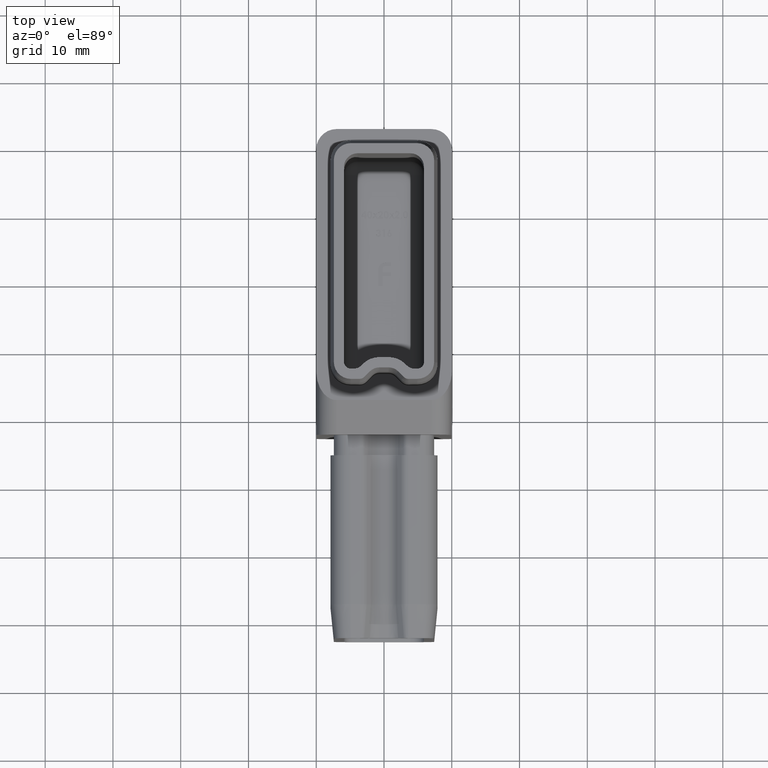
[diagram: clean part render]
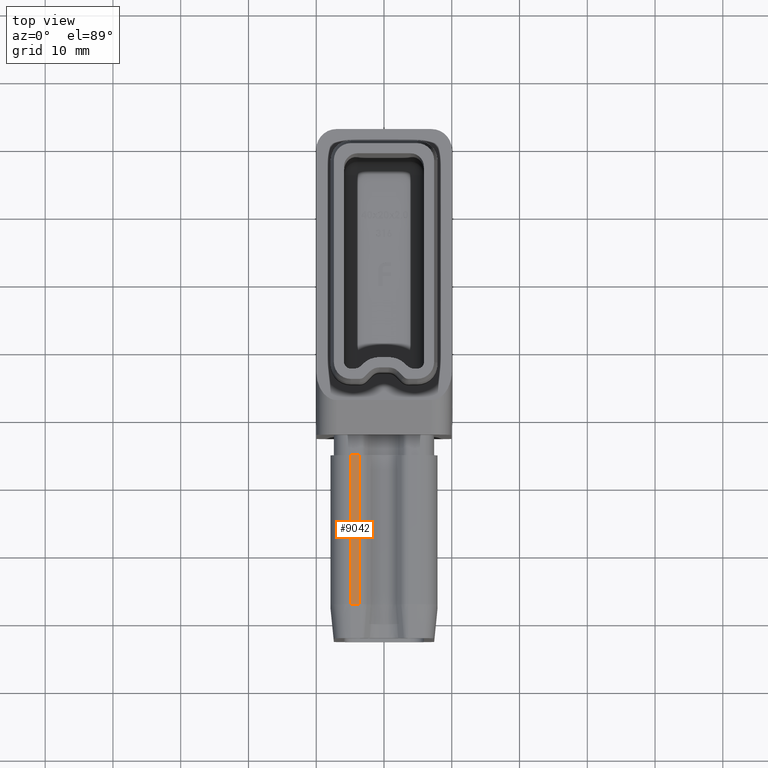
[diagram: same view with one face highlighted and labeled with its STEP entity id]
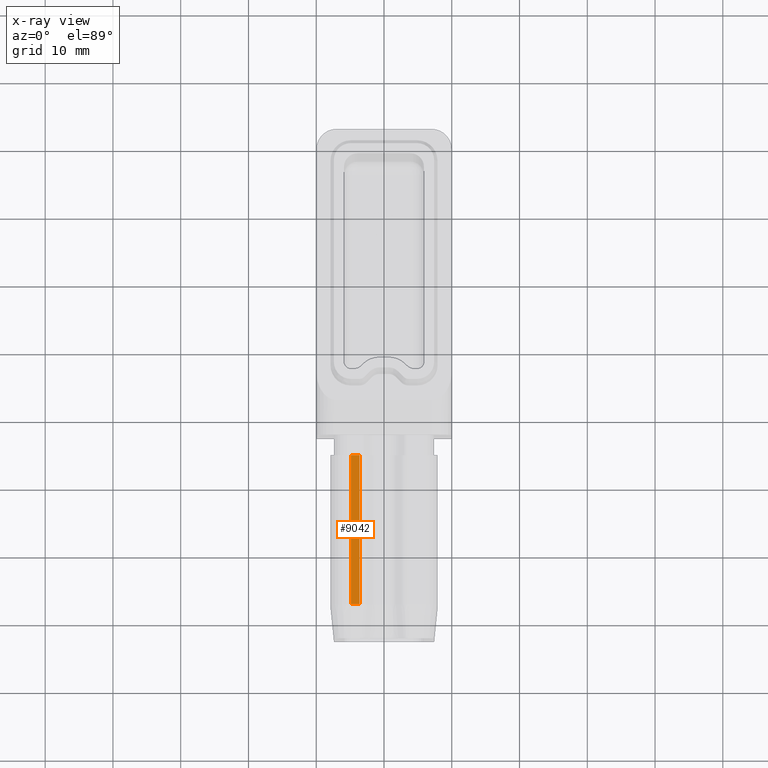
[diagram: x-ray of the same camera — body ghosted, the highlighted face saturated]
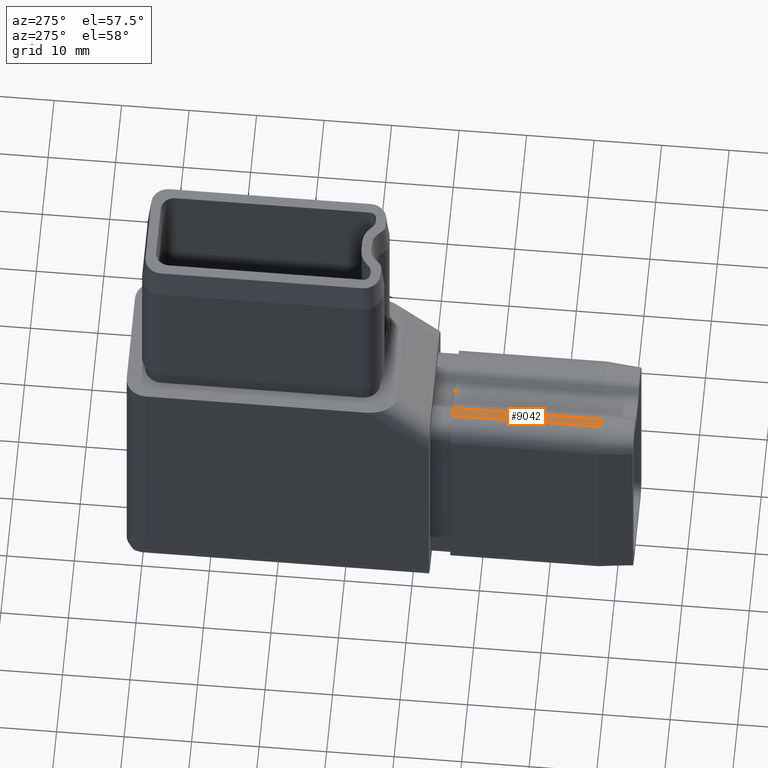
[diagram: same view with one face highlighted and labeled with its STEP entity id]
A machine part, top view. The second image highlights one B-rep face of the part: STEP entity #9042.
The next image is the same camera in x-ray: the body ghosted, the highlighted face saturated — about 0% of this face is hidden behind the body in this view.
A second angle (auxiliary view) of the same face is appended — the face is thin or edge-on in the first view.
In plain terms, the highlighted planar face has unit normal (0, 0, -1).
Its self-contained STEP definition (entity closure, byte-faithful):
#13 = CARTESIAN_POINT ( 'NONE',  ( -3.621320343559645000, -47.49999999999999300, 15.39999999999999000 ) ) ;
#1527 = CARTESIAN_POINT ( 'NONE',  ( -4.900000000000003900, -52.50000000000000000, 15.39999999999998800 ) ) ;
#1610 = DIRECTION ( 'NONE',  ( -0.0000000000000000000, 1.000000000000000000, 2.220446049250313100E-016 ) ) ;
#2967 = VERTEX_POINT ( 'NONE', #7587 ) ;
#3039 = LINE ( 'NONE', #15984, #24430 ) ;
#3333 = EDGE_CURVE ( 'NONE', #12422, #2967, #3039, .T. ) ;
#4316 = EDGE_CURVE ( 'NONE', #19379, #2967, #15217, .T. ) ;
#4355 = DIRECTION ( 'NONE',  ( -1.000000000000000000, 0.0000000000000000000, -1.356652127246633100E-015 ) ) ;
#4410 = ORIENTED_EDGE ( 'NONE', *, *, #4316, .F. ) ;
#7587 = CARTESIAN_POINT ( 'NONE',  ( -4.900000000000007500, -25.50000000000000000, 15.39999999999999700 ) ) ;
#7763 = EDGE_LOOP ( 'NONE', ( #4410, #23335, #20088, #24741 ) ) ;
#8268 = DIRECTION ( 'NONE',  ( -1.000000000000000000, 0.0000000000000000000, 1.356652127246630800E-015 ) ) ;
#8441 = CARTESIAN_POINT ( 'NONE',  ( -3.621320343559645000, -47.49999999999999300, 15.39999999999999000 ) ) ;
#8723 = VERTEX_POINT ( 'NONE', #13 ) ;
#9042 = ADVANCED_FACE ( 'NONE', ( #22452 ), #24436, .F. ) ;
#9652 = DIRECTION ( 'NONE',  ( -0.0000000000000000000, 1.000000000000000000, 2.220446049250313100E-016 ) ) ;
#10529 = VECTOR ( 'NONE', #8268, 1000.000000000000000 ) ;
#11151 = LINE ( 'NONE', #8441, #10529 ) ;
#11371 = LINE ( 'NONE', #21349, #17156 ) ;
#11473 = EDGE_CURVE ( 'NONE', #8723, #12422, #11371, .T. ) ;
#12422 = VERTEX_POINT ( 'NONE', #17262 ) ;
#13094 = VECTOR ( 'NONE', #1610, 1000.000000000000000 ) ;
#15197 = AXIS2_PLACEMENT_3D ( 'NONE', #24351, #18542, #22474 ) ;
#15217 = LINE ( 'NONE', #1527, #13094 ) ;
#15984 = CARTESIAN_POINT ( 'NONE',  ( -3.621320343559648600, -25.50000000000000000, 15.39999999999999900 ) ) ;
#17156 = VECTOR ( 'NONE', #9652, 1000.000000000000000 ) ;
#17262 = CARTESIAN_POINT ( 'NONE',  ( -3.621320343559648600, -25.50000000000000000, 15.39999999999999900 ) ) ;
#17807 = EDGE_CURVE ( 'NONE', #8723, #19379, #11151, .T. ) ;
#18542 = DIRECTION ( 'NONE',  ( 0.0000000000000000000, 2.220446049250313100E-016, -1.000000000000000000 ) ) ;
#19379 = VERTEX_POINT ( 'NONE', #23949 ) ;
#20088 = ORIENTED_EDGE ( 'NONE', *, *, #11473, .T. ) ;
#21349 = CARTESIAN_POINT ( 'NONE',  ( -3.621320343559643300, -52.50000000000000000, 15.39999999999998800 ) ) ;
#22452 = FACE_OUTER_BOUND ( 'NONE', #7763, .T. ) ;
#22474 = DIRECTION ( 'NONE',  ( 0.0000000000000000000, 1.000000000000000000, 2.220446049250313100E-016 ) ) ;
#23335 = ORIENTED_EDGE ( 'NONE', *, *, #17807, .F. ) ;
#23949 = CARTESIAN_POINT ( 'NONE',  ( -4.900000000000006600, -47.49999999999999300, 15.39999999999999100 ) ) ;
#24351 = CARTESIAN_POINT ( 'NONE',  ( 0.0000000000000000000, -52.50000000000000000, 15.39999999999998800 ) ) ;
#24430 = VECTOR ( 'NONE', #4355, 1000.000000000000000 ) ;
#24436 = PLANE ( 'NONE',  #15197 ) ;
#24741 = ORIENTED_EDGE ( 'NONE', *, *, #3333, .T. ) ;